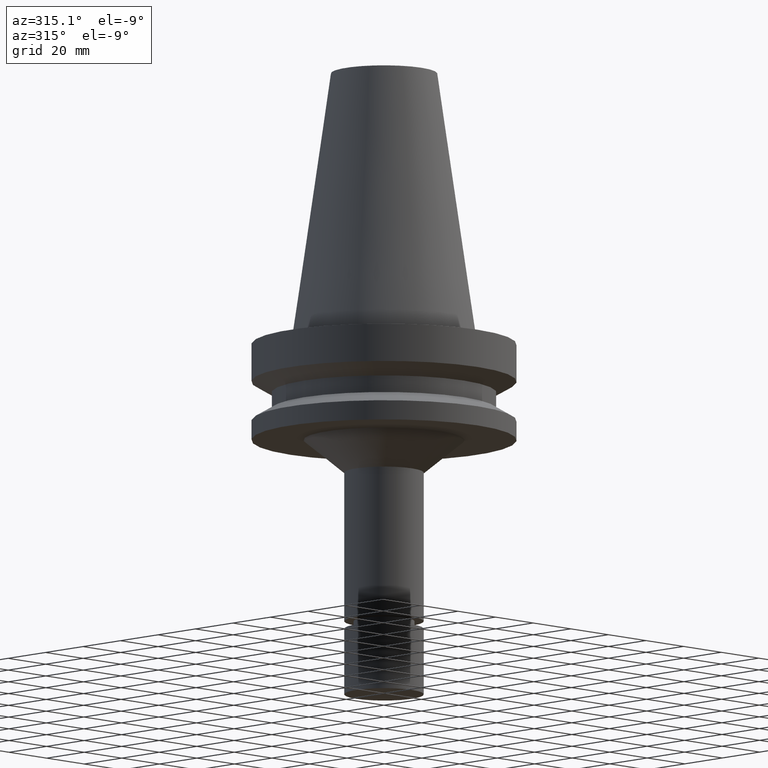
[diagram: clean part render]
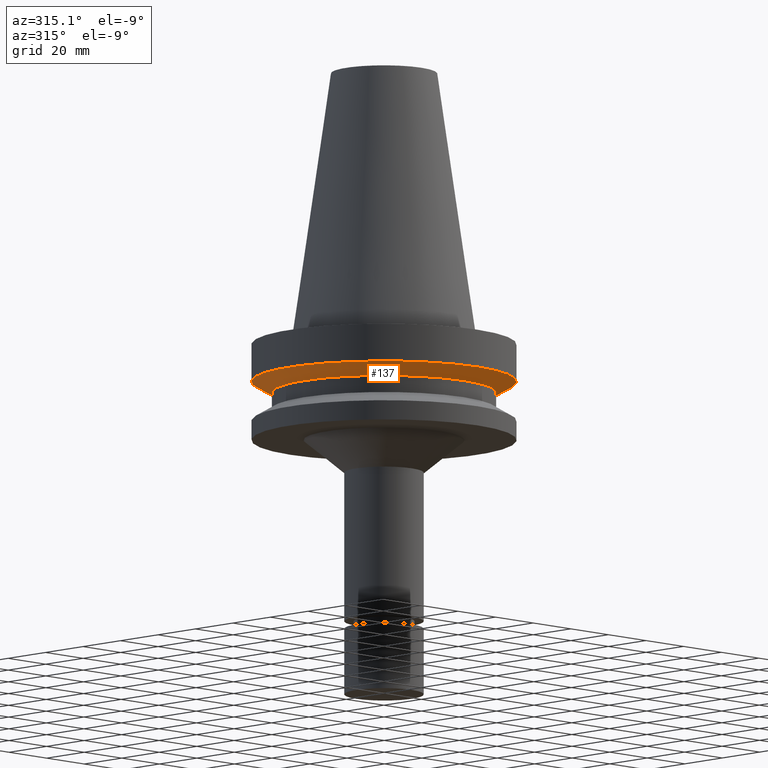
[diagram: same view with one face highlighted and labeled with its STEP entity id]
A machine part, auxiliary view. The second image highlights one B-rep face of the part: STEP entity #137.
In plain terms, the highlighted conical surface has half-angle 60 deg.
Its self-contained STEP definition (entity closure, byte-faithful):
#81=EDGE_CURVE('Unnamed[1]',#210,#210,#211,.T.);
#131=EDGE_CURVE('Unnamed[1]',#286,#286,#287,.T.);
#137=ADVANCED_FACE('Unnamed[1]',(#294,#295),#296,.T.);
#210=VERTEX_POINT('',#388);
#211=CIRCLE('',#389,50.0);
#286=VERTEX_POINT('',#481);
#287=CIRCLE('',#482,42.5);
#294=FACE_BOUND('',#491,.T.);
#295=FACE_BOUND('',#492,.T.);
#296=CONICAL_SURFACE('',#493,46.25,1.04719755108882);
#388=CARTESIAN_POINT('',(9.61347737330674E-016,50.0,-15.7));
#389=AXIS2_PLACEMENT_3D('',#591,#592,#593);
#481=CARTESIAN_POINT('',(1.2264915470779E-015,42.5,-20.03012702));
#482=AXIS2_PLACEMENT_3D('',#673,#674,#675);
#491=EDGE_LOOP('',(#682));
#492=EDGE_LOOP('',(#683));
#493=AXIS2_PLACEMENT_3D('',#684,#685,#686);
#591=CARTESIAN_POINT('',(9.61347737330675E-016,1.48191778867216E-014,-15.7));
#592=DIRECTION('',(-6.12323399573677E-017,-1.52619998477039E-017,1.0));
#593=DIRECTION('',(-5.76168069386964E-033,1.0,1.52619998477039E-017));
#673=CARTESIAN_POINT('',(1.2264915470779E-015,1.48852642846416E-014,-20.03012702));
#674=DIRECTION('',(-6.12323399573677E-017,-1.52619998477571E-017,1.0));
#675=DIRECTION('',(-5.76168069387344E-033,1.0,1.52619998477571E-017));
#682=ORIENTED_EDGE('',*,*,#81,.F.);
#683=ORIENTED_EDGE('',*,*,#131,.T.);
#684=CARTESIAN_POINT('',(1.09391964220429E-015,1.48522210856816E-014,-17.86506351));
#685=DIRECTION('',(-6.12323399573677E-017,-1.52619998477633E-017,1.0));
#686=DIRECTION('',(-5.76168069387914E-033,1.0,1.52619998477633E-017));